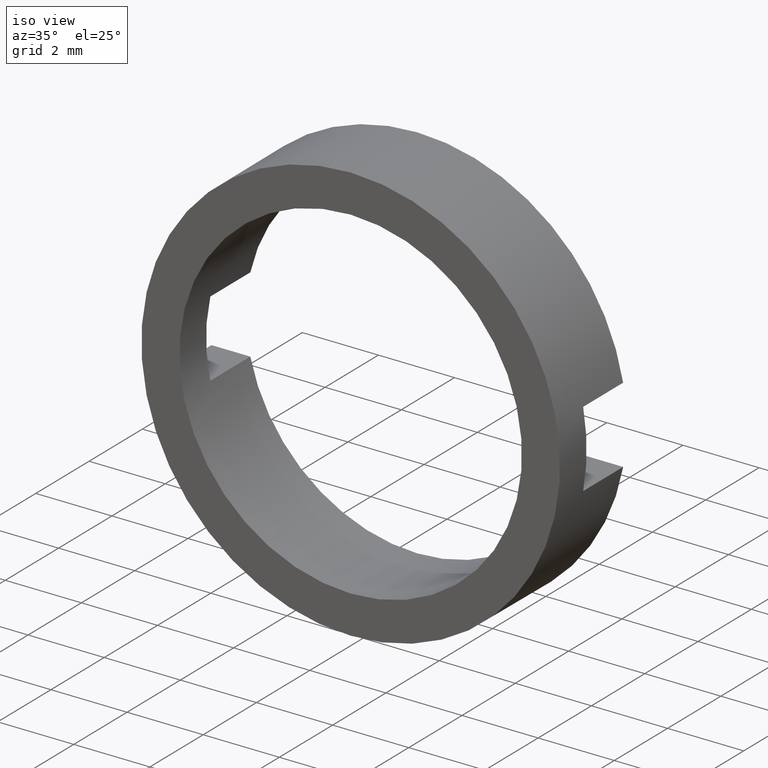
[diagram: clean part render]
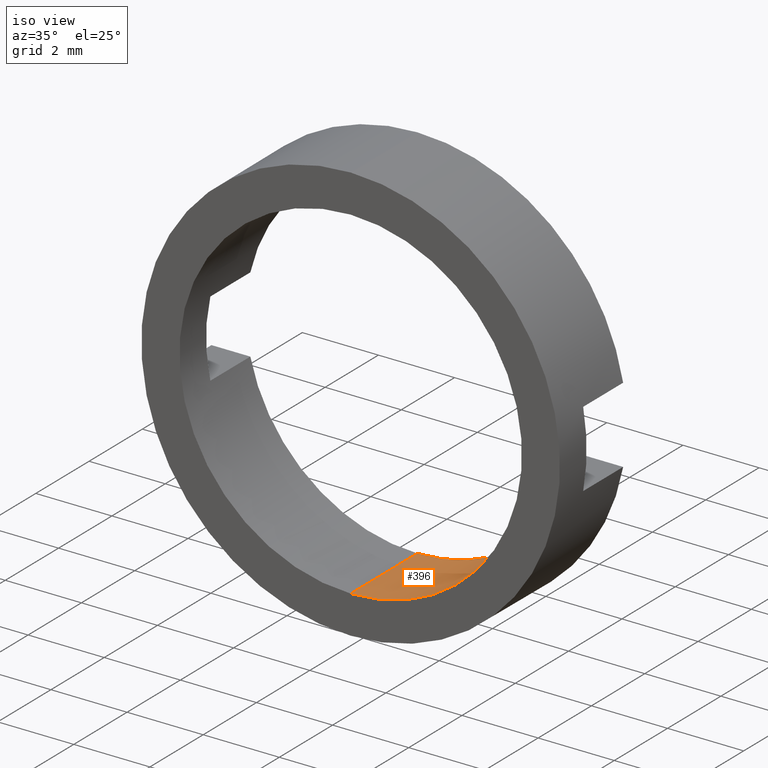
[diagram: same view with one face highlighted and labeled with its STEP entity id]
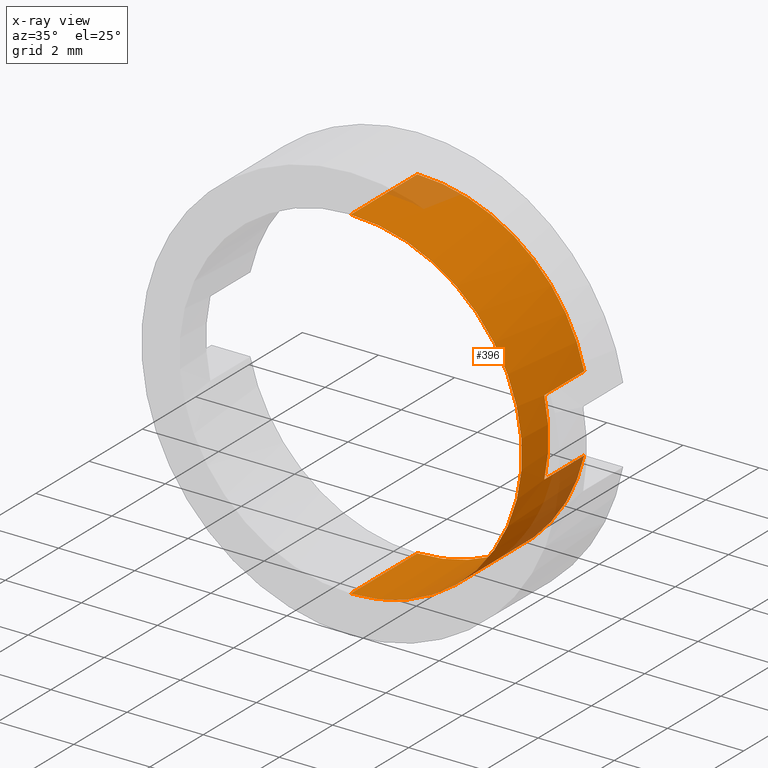
[diagram: x-ray of the same camera — body ghosted, the highlighted face saturated]
A machine part, iso view. The second image highlights one B-rep face of the part: STEP entity #396.
The next image is the same camera in x-ray: the body ghosted, the highlighted face saturated — about 10% of this face is hidden behind the body in this view.
In plain terms, the highlighted cylindrical surface (partial cylindrical patch) has radius 4.5 mm, axis along (-0, 1, -0).
Its self-contained STEP definition (entity closure, byte-faithful):
#5 = DIRECTION ( 'NONE',  ( 0.0000000000000000000, 0.0000000000000000000, 1.000000000000000000 ) ) ;
#12 = AXIS2_PLACEMENT_3D ( 'NONE', #389, #346, #77 ) ;
#25 = CARTESIAN_POINT ( 'NONE',  ( 0.0000000000000000000, 56.26084262701361600, 0.0000000000000000000 ) ) ;
#31 = AXIS2_PLACEMENT_3D ( 'NONE', #254, #214, #431 ) ;
#39 = EDGE_CURVE ( 'NONE', #310, #571, #260, .T. ) ;
#41 = CYLINDRICAL_SURFACE ( 'NONE', #440, 4.500000000000007100 ) ;
#44 = EDGE_CURVE ( 'NONE', #435, #418, #563, .T. ) ;
#53 = AXIS2_PLACEMENT_3D ( 'NONE', #406, #410, #182 ) ;
#66 = CARTESIAN_POINT ( 'NONE',  ( 0.0000000000000000000, -1.964249787179434000, 4.500000000000007100 ) ) ;
#68 = VECTOR ( 'NONE', #219, 1000.000000000000000 ) ;
#70 = ORIENTED_EDGE ( 'NONE', *, *, #39, .T. ) ;
#77 = DIRECTION ( 'NONE',  ( 0.0000000000000000000, 0.0000000000000000000, 1.000000000000000000 ) ) ;
#81 = DIRECTION ( 'NONE',  ( -0.0000000000000000000, 1.000000000000000000, -0.0000000000000000000 ) ) ;
#104 = ORIENTED_EDGE ( 'NONE', *, *, #229, .T. ) ;
#123 = CARTESIAN_POINT ( 'NONE',  ( 5.510910596163098400E-016, -1.964249787179434000, -4.500000000000007100 ) ) ;
#142 = VECTOR ( 'NONE', #194, 1000.000000000000000 ) ;
#144 = LINE ( 'NONE', #303, #68 ) ;
#150 = CIRCLE ( 'NONE', #12, 4.500000000000007100 ) ;
#155 = DIRECTION ( 'NONE',  ( -0.0000000000000000000, 1.000000000000000000, -0.0000000000000000000 ) ) ;
#160 = ORIENTED_EDGE ( 'NONE', *, *, #493, .T. ) ;
#161 = CARTESIAN_POINT ( 'NONE',  ( 0.0000000000000000000, 56.26084262701361600, 4.500000000000007100 ) ) ;
#182 = DIRECTION ( 'NONE',  ( 0.0000000000000000000, 0.0000000000000000000, 1.000000000000000000 ) ) ;
#184 = ORIENTED_EDGE ( 'NONE', *, *, #484, .T. ) ;
#192 = AXIS2_PLACEMENT_3D ( 'NONE', #407, #547, #5 ) ;
#194 = DIRECTION ( 'NONE',  ( -0.0000000000000000000, 1.000000000000000000, -0.0000000000000000000 ) ) ;
#201 = VERTEX_POINT ( 'NONE', #280 ) ;
#202 = DIRECTION ( 'NONE',  ( -0.0000000000000000000, 1.000000000000000000, -0.0000000000000000000 ) ) ;
#209 = FACE_OUTER_BOUND ( 'NONE', #409, .T. ) ;
#211 = CARTESIAN_POINT ( 'NONE',  ( 5.510910596163098400E-016, 56.26084262701361600, -4.500000000000007100 ) ) ;
#214 = DIRECTION ( 'NONE',  ( -0.0000000000000000000, -1.000000000000000000, -0.0000000000000000000 ) ) ;
#218 = ORIENTED_EDGE ( 'NONE', *, *, #44, .F. ) ;
#219 = DIRECTION ( 'NONE',  ( 0.0000000000000000000, -1.000000000000000000, 0.0000000000000000000 ) ) ;
#220 = CARTESIAN_POINT ( 'NONE',  ( 4.387482193696067500, -1.964249787179434000, 0.9999999999999995600 ) ) ;
#229 = EDGE_CURVE ( 'NONE', #201, #570, #506, .T. ) ;
#254 = CARTESIAN_POINT ( 'NONE',  ( 0.0000000000000000000, -3.464249787179428400, 0.0000000000000000000 ) ) ;
#257 = CARTESIAN_POINT ( 'NONE',  ( 0.0000000000000000000, -4.464249787179428900, 4.500000000000007100 ) ) ;
#259 = ORIENTED_EDGE ( 'NONE', *, *, #482, .F. ) ;
#260 = CIRCLE ( 'NONE', #192, 4.500000000000007100 ) ;
#275 = LINE ( 'NONE', #211, #375 ) ;
#280 = CARTESIAN_POINT ( 'NONE',  ( 4.387482193696067500, -3.464249787179428400, -0.9999999999999995600 ) ) ;
#302 = ORIENTED_EDGE ( 'NONE', *, *, #422, .F. ) ;
#303 = CARTESIAN_POINT ( 'NONE',  ( 4.387482193696068400, 56.26084262701361600, 1.000000000000000000 ) ) ;
#310 = VERTEX_POINT ( 'NONE', #66 ) ;
#320 = VECTOR ( 'NONE', #155, 1000.000000000000000 ) ;
#340 = ORIENTED_EDGE ( 'NONE', *, *, #370, .T. ) ;
#346 = DIRECTION ( 'NONE',  ( -0.0000000000000000000, 1.000000000000000000, -0.0000000000000000000 ) ) ;
#370 = EDGE_CURVE ( 'NONE', #435, #310, #442, .T. ) ;
#375 = VECTOR ( 'NONE', #81, 1000.000000000000000 ) ;
#377 = VERTEX_POINT ( 'NONE', #123 ) ;
#389 = CARTESIAN_POINT ( 'NONE',  ( 0.0000000000000000000, -1.964249787179434000, 0.0000000000000000000 ) ) ;
#396 = ADVANCED_FACE ( 'NONE', ( #209 ), #41, .F. ) ;
#406 = CARTESIAN_POINT ( 'NONE',  ( 0.0000000000000000000, -4.464249787179428900, 0.0000000000000000000 ) ) ;
#407 = CARTESIAN_POINT ( 'NONE',  ( 0.0000000000000000000, -1.964249787179434000, 0.0000000000000000000 ) ) ;
#409 = EDGE_LOOP ( 'NONE', ( #302, #218, #340, #70, #160, #259, #104, #184 ) ) ;
#410 = DIRECTION ( 'NONE',  ( -0.0000000000000000000, 1.000000000000000000, -0.0000000000000000000 ) ) ;
#418 = VERTEX_POINT ( 'NONE', #432 ) ;
#422 = EDGE_CURVE ( 'NONE', #418, #377, #275, .T. ) ;
#431 = DIRECTION ( 'NONE',  ( 8.881784197001253900E-015, 0.0000000000000000000, 1.000000000000000000 ) ) ;
#432 = CARTESIAN_POINT ( 'NONE',  ( 5.510910596163098400E-016, -4.464249787179428900, -4.500000000000007100 ) ) ;
#435 = VERTEX_POINT ( 'NONE', #257 ) ;
#440 = AXIS2_PLACEMENT_3D ( 'NONE', #25, #202, #476 ) ;
#442 = LINE ( 'NONE', #161, #320 ) ;
#453 = CARTESIAN_POINT ( 'NONE',  ( 4.387482193696067500, -1.964249787179434000, -0.9999999999999995600 ) ) ;
#476 = DIRECTION ( 'NONE',  ( 0.0000000000000000000, 0.0000000000000000000, 1.000000000000000000 ) ) ;
#478 = CARTESIAN_POINT ( 'NONE',  ( 4.387482193696067500, -3.464249787179428400, 0.9999999999999995600 ) ) ;
#482 = EDGE_CURVE ( 'NONE', #201, #499, #545, .T. ) ;
#484 = EDGE_CURVE ( 'NONE', #570, #377, #150, .T. ) ;
#493 = EDGE_CURVE ( 'NONE', #571, #499, #144, .T. ) ;
#499 = VERTEX_POINT ( 'NONE', #478 ) ;
#504 = CARTESIAN_POINT ( 'NONE',  ( 4.387482193696068400, 56.26084262701361600, -1.000000000000000000 ) ) ;
#506 = LINE ( 'NONE', #504, #142 ) ;
#545 = CIRCLE ( 'NONE', #31, 4.500000000000007100 ) ;
#547 = DIRECTION ( 'NONE',  ( -0.0000000000000000000, 1.000000000000000000, -0.0000000000000000000 ) ) ;
#563 = CIRCLE ( 'NONE', #53, 4.500000000000007100 ) ;
#570 = VERTEX_POINT ( 'NONE', #453 ) ;
#571 = VERTEX_POINT ( 'NONE', #220 ) ;